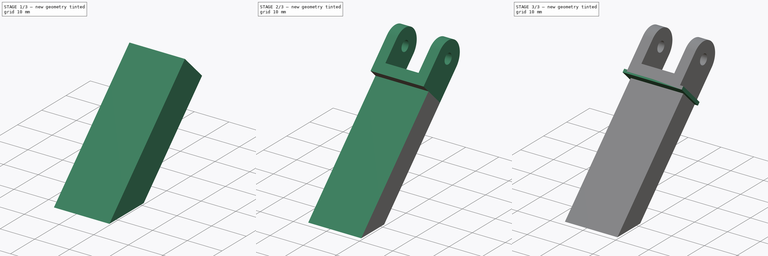
[diagram: build sequence overview — one tinted view per stage of 3, left to right]
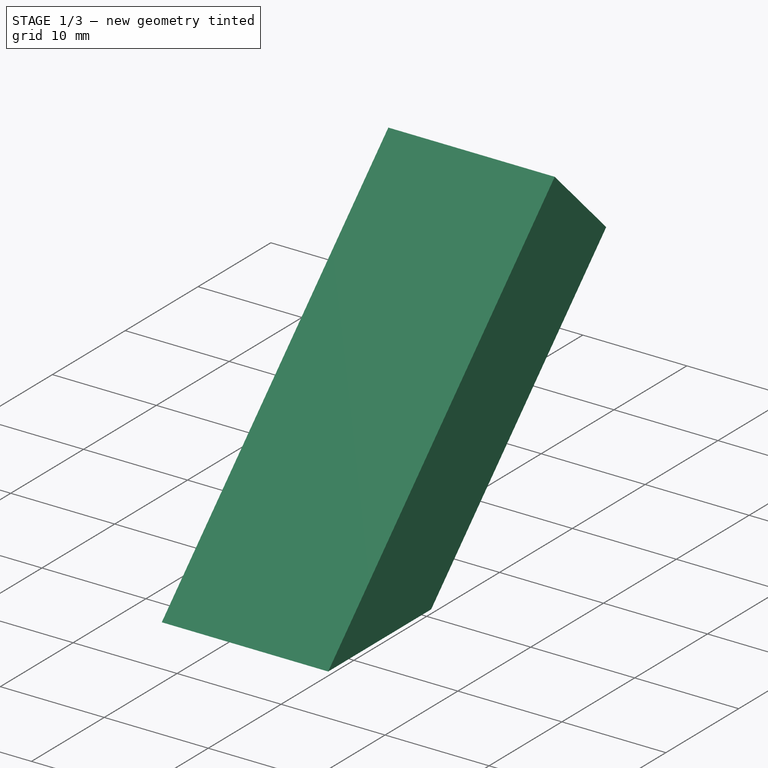
[diagram: stage 1 of 3 — iso view after this stage's code; geometry added in this stage tinted green]
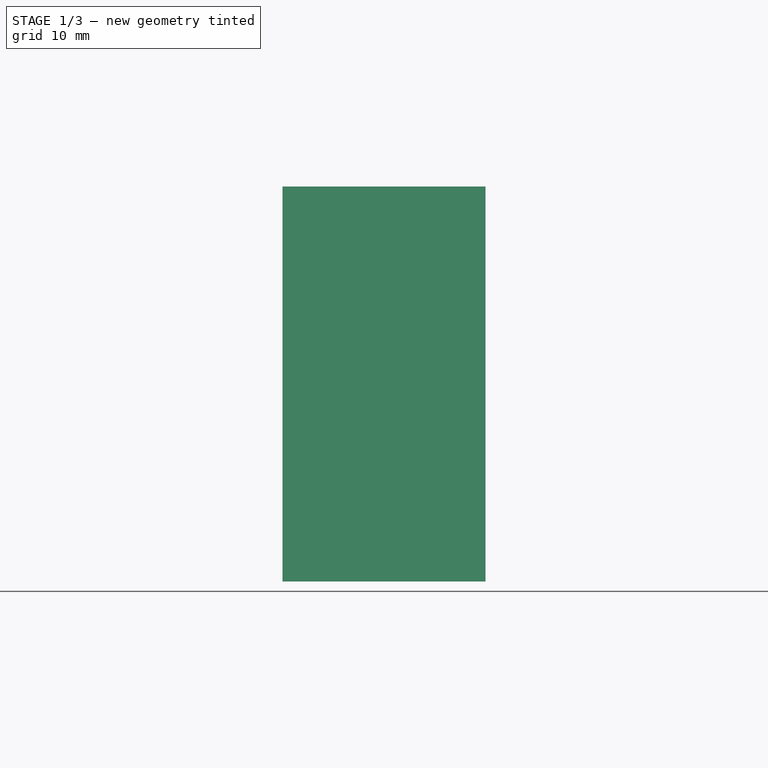
[diagram: stage 1 of 3 — front view after this stage's code; geometry added in this stage tinted green]
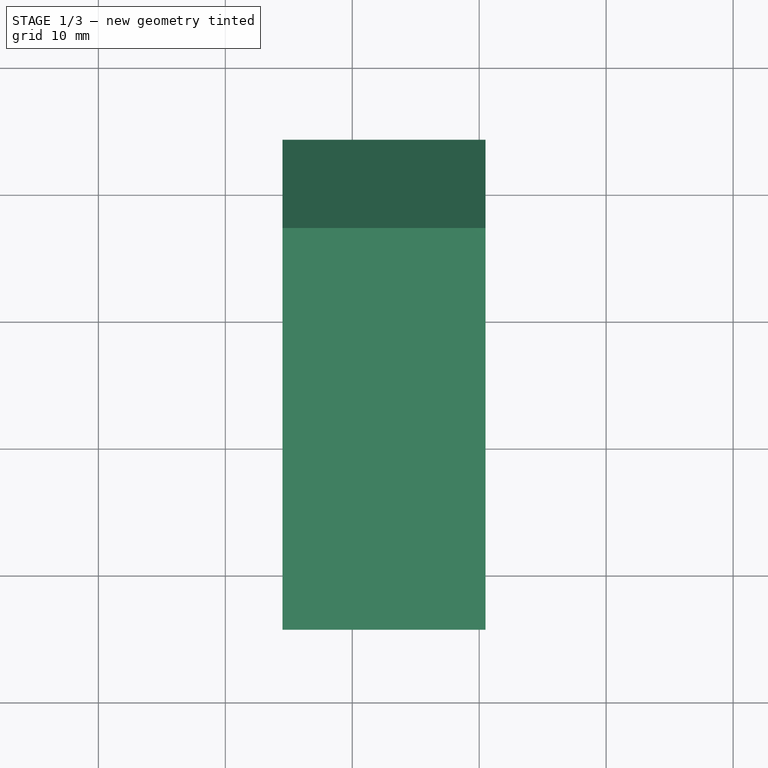
[diagram: stage 1 of 3 — top view after this stage's code; geometry added in this stage tinted green]
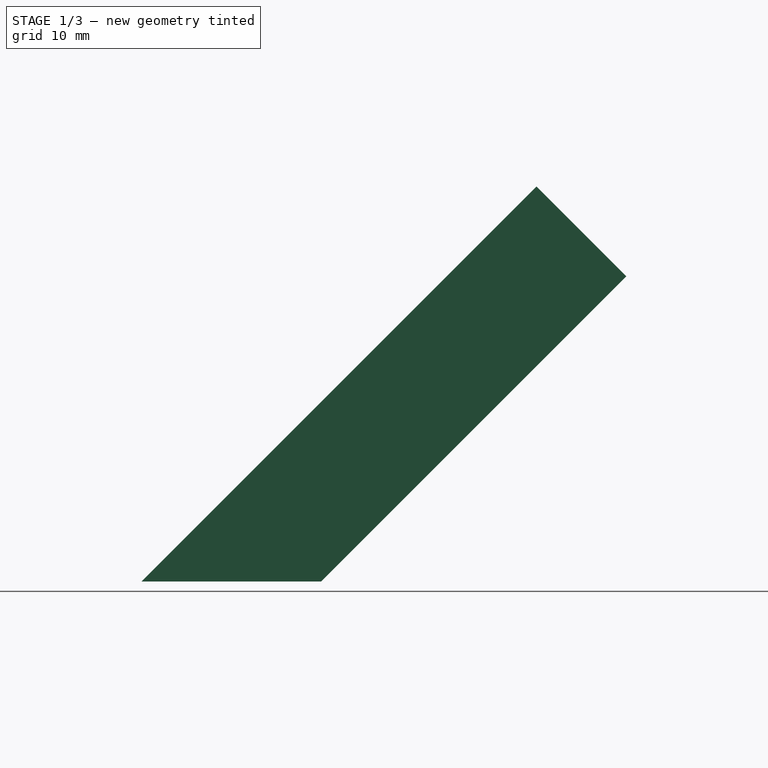
[diagram: stage 1 of 3 — right view after this stage's code; geometry added in this stage tinted green]
FCSTD DOCUMENT  (FreeCAD 1.0R39285 (Git))
Label: display-stand
License: All rights reserved
LicenseURL: http://en.wikipedia.org/wiki/All_rights_reserved
objects: Sketcher::SketchObject×5, PartDesign::Pad×3, PartDesign::Pocket×2, Part::Feature×1, PartDesign::FeatureBase×1, PartDesign::ShapeBinder×1, PartDesign::Plane×1, PartDesign::Fillet×1, PartDesign::Body×1, App::Part×1
note: 34 computed .brp shape members not serialized (recipe doc carries the construction recipe); baked Part::Feature solids carry a one-line shape summary decoded from their .brp

FEATURE [Sketcher::SketchObject] Sketch001
  ArcFitTolerance = 1e-06
  FullyConstrained = true
  MakeInternals = false
  MapMode = 5
  Placement = pos=(0,28.9914,28.9914) rot=(-1,0,0;0.785398rad)
  sketch-geometry (5):
    g0: LineSegment StartX=34.5 StartY=7.00003 StartZ=0 EndX=34.5 EndY=-2.99997 EndZ=0
    g1: LineSegment StartX=34.5 StartY=-2.99997 StartZ=0 EndX=50.5 EndY=-2.99997 EndZ=0
    g2: LineSegment StartX=50.5 StartY=-2.99997 StartZ=0 EndX=50.5 EndY=7.00003 EndZ=0
    g3: LineSegment StartX=50.5 StartY=7.00003 StartZ=0 EndX=34.5 EndY=7.00003 EndZ=0
    g4: GeomPoint X=42.5 Y=-2.99997 Z=0
  constraints (12):
    c: Coincident(g0,g1)
    c: Coincident(g1,g2)
    c: Coincident(g2,g3)
    c: Coincident(g3,g0)
    c: Vertical(g0)
    c: Vertical(g2)
    c: Horizontal(g1)
    c: Horizontal(g3)
    c: DistanceX(g3,g3) = 16
    c: Symmetric(g1,g1,g4)
    c: Symmetric(g-3,g-3,g4)
    c: DistanceY(g2,g2) = 10
FEATURE [PartDesign::ShapeBinder] ShapeBinder
  Support = -> [LCD1602_Mount001_solid]
  TraceSupport = false
FEATURE [PartDesign::Plane] DatumPlane
  AttachmentSupport = -> [ShapeBinder]
  Length = 87.232
  MapMode = 45
  Placement = pos=(42,19.3276,0) rot=(0,0,1;1.57227rad)
  ResizeMode = 0
  Width = 127.624
FEATURE [PartDesign::Pad] Pad001
  Direction = (0,0.707107,0.707107)
  Length = 15
  Length2 = 10
  Placement = pos=(0,28.9914,28.9914) rot=(-1,0,0;0.785398rad)
  Profile = -> Sketch001
  ReferenceAxis = -> Sketch001 [N_Axis]
  Suppressed = false
  Type = 3
  UpToFace = -> DatumPlane
FEATURE [Sketcher::SketchObject] Sketch002
  ArcFitTolerance = 1e-06
  AttachmentSupport = -> [Pad001]
  FullyConstrained = true
  MakeInternals = false
  MapMode = 5
  Placement = pos=(34.5,28.9914,28.9914) rot=(0.357407,-0.862856,-0.357407;1.71777rad)
  sketch-geometry (2):
    g0: LineSegment [constr] StartX=-2.00003 StartY=15 StartZ=0 EndX=-2.00003 EndY=0 EndZ=0
    g1: Circle CenterX=-2.00003 CenterY=10 CenterZ=0 NormalX=0 NormalY=0 NormalZ=1 AngleXU=0 Radius=1.55
  constraints (5):
    c: Symmetric(g-3,g-4,g0)
    c: Symmetric(g-3,g-4,g0)
    c: Diameter(g1) = 3.1
    c: DistanceY(g1,g-4) = 5
    c: PointOnObject(g1,g0)
FEATURE [PartDesign::Pocket] Pocket
  BaseFeature = -> Pad001
  Direction = (1,0,0)
  Length = 5
  Length2 = 5
  Placement = pos=(0,28.9914,28.9914) rot=(-1,0,0;0.785398rad)
  Profile = -> Sketch002
  ReferenceAxis = -> Sketch002 [N_Axis]
  Suppressed = false
  Type = 1
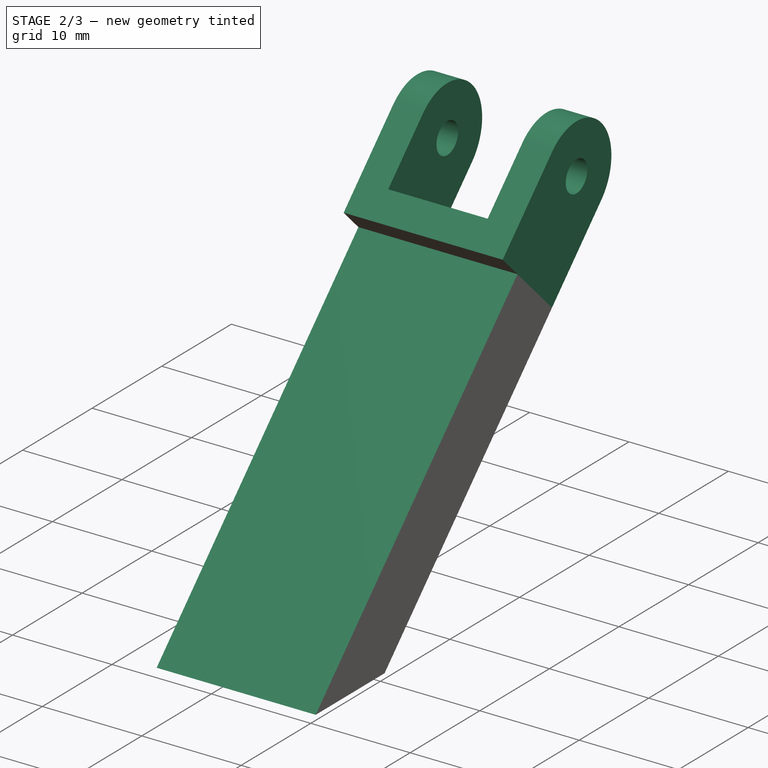
[diagram: stage 2 of 3 — iso view after this stage's code; geometry added in this stage tinted green]
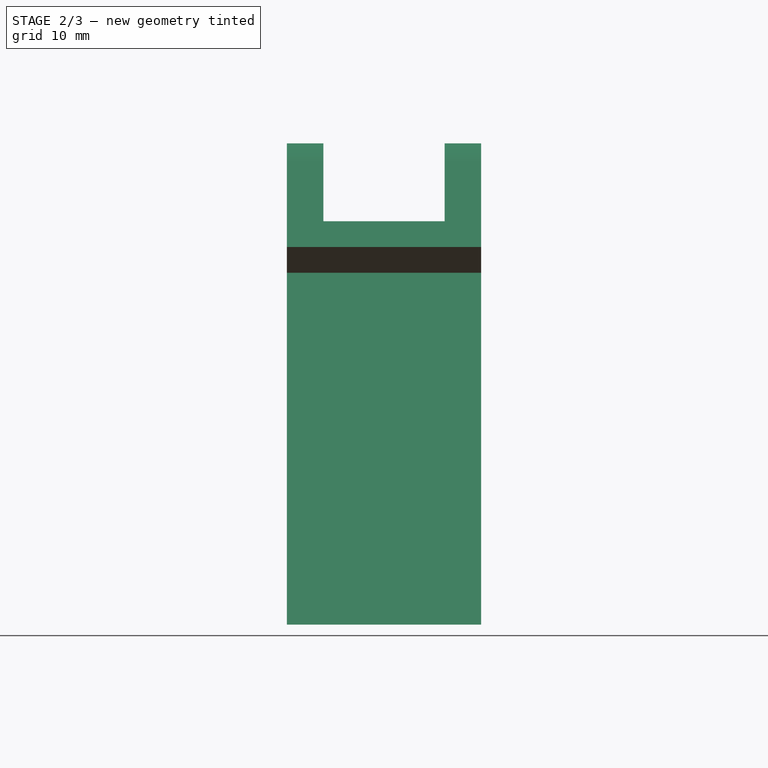
[diagram: stage 2 of 3 — front view after this stage's code; geometry added in this stage tinted green]
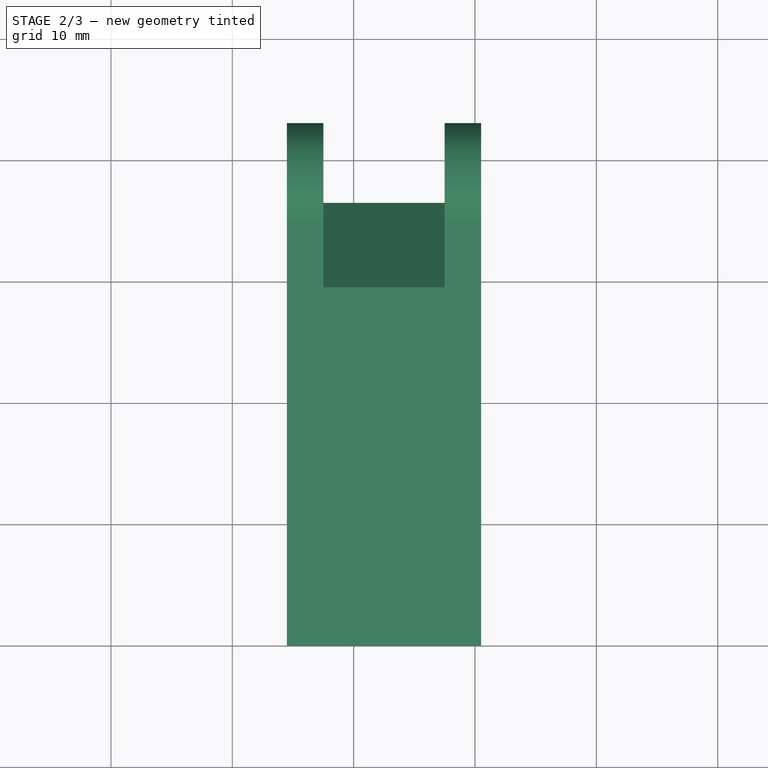
[diagram: stage 2 of 3 — top view after this stage's code; geometry added in this stage tinted green]
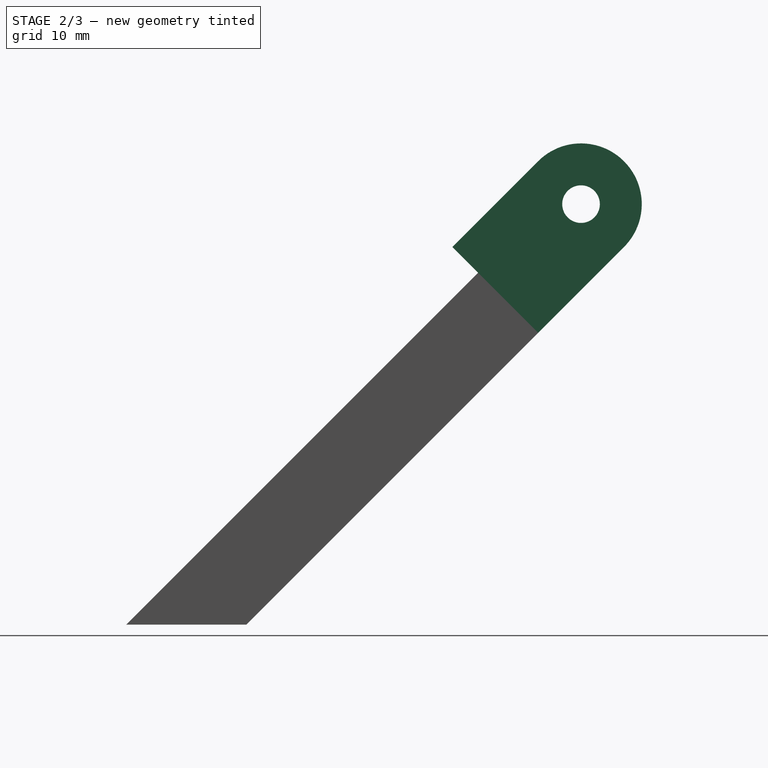
[diagram: stage 2 of 3 — right view after this stage's code; geometry added in this stage tinted green]
FEATURE [Sketcher::SketchObject] Sketch003
  ArcFitTolerance = 1e-06
  AttachmentSupport = -> [Pocket]
  ExternalGeometry = -> [Pocket]
  FullyConstrained = true
  MakeInternals = false
  MapMode = 5
  Placement = pos=(0,39.598,39.598) rot=(-1,0,0;0.785398rad)
  sketch-geometry (5):
    g0: LineSegment StartX=37.5 StartY=12 StartZ=0 EndX=37.5 EndY=-2.99997 EndZ=0
    g1: LineSegment StartX=37.5 StartY=-2.99997 StartZ=0 EndX=47.5 EndY=-2.99997 EndZ=0
    g2: LineSegment StartX=47.5 StartY=-2.99997 StartZ=0 EndX=47.5 EndY=12 EndZ=0
    g3: LineSegment StartX=47.5 StartY=12 StartZ=0 EndX=37.5 EndY=12 EndZ=0
    g4: GeomPoint X=42.5 Y=12 Z=0
  constraints (13):
    c: Coincident(g1,g2)
    c: Coincident(g2,g3)
    c: Coincident(g3,g0)
    c: Vertical(g0)
    c: Vertical(g2)
    c: Horizontal(g1)
    c: Horizontal(g3)
    c: Distance(g0,g2) = 10
    c: Symmetric(g3,g3,g4)
    c: Coincident(g0,g1)
    c: DistanceY(g2,g2) = 15
    c: PointOnObject(g0,g-4)
    c: DistanceX(g1,g-4) = 3
FEATURE [PartDesign::Pocket] Pocket001
  BaseFeature = -> Pocket
  Direction = (0,-0.707107,-0.707107)
  Length = 12
  Length2 = 5
  Placement = pos=(0,28.9914,28.9914) rot=(-1,0,0;0.785398rad)
  Profile = -> Sketch003
  ReferenceAxis = -> Sketch003 [N_Axis]
  Suppressed = false
  Type = 0
FEATURE [PartDesign::Fillet] Fillet
  Base = -> Pocket001 [Edge18,Edge16,Edge7,Edge11]
  BaseFeature = -> Pocket001
  Placement = pos=(0,28.9914,28.9914) rot=(-1,0,0;0.785398rad)
  Radius = 4.99
  SupportTransform = false
  Suppressed = false
  UseAllEdges = false
FEATURE [Sketcher::SketchObject] Sketch004
  ArcFitTolerance = 1e-06
  AttachmentSupport = -> [Fillet]
  ExternalGeometry = -> [Sketch001]
  FullyConstrained = true
  MakeInternals = false
  MapMode = 5
  Placement = pos=(0,28.9914,28.9914) rot=(1,0,0;2.35619rad)
  sketch-geometry (4):
    g0: LineSegment StartX=34.5 StartY=-2.91327e-05 StartZ=0 EndX=34.5 EndY=-7.00003 EndZ=0
    g1: LineSegment StartX=34.5 StartY=-7.00003 StartZ=0 EndX=50.5 EndY=-7.00003 EndZ=0
    g2: LineSegment StartX=50.5 StartY=-7.00003 StartZ=0 EndX=50.5 EndY=-2.91327e-05 EndZ=0
    g3: LineSegment StartX=50.5 StartY=-2.91327e-05 StartZ=0 EndX=34.5 EndY=-2.91327e-05 EndZ=0
  constraints (11):
    c: Coincident(g0,g1)
    c: Coincident(g1,g2)
    c: Coincident(g2,g3)
    c: Coincident(g3,g0)
    c: Vertical(g0)
    c: Vertical(g2)
    c: Horizontal(g1)
    c: Horizontal(g3)
    c: PointOnObject(g0,g-3)
    c: Coincident(g1,g-5)
    c: DistanceY(g0,g0) = 7
FEATURE [PartDesign::Pad] Pad002
  BaseFeature = -> Fillet
  Direction = (1,1,1)
  Length = 10
  Length2 = 10
  Placement = pos=(0,28.9914,28.9914) rot=(-1,0,0;0.785398rad)
  Profile = -> Sketch004
  ReferenceAxis = -> Sketch004 [N_Axis]
  Suppressed = false
  Type = 3
  UpToFace = -> DatumPlane
FEATURE [PartDesign::Body] Body
  AllowCompound = false
  Group = -> [ShapeBinder,Sketch001,Pad001,Sketch002,Pocket,Sketch003,Pocket001,Fillet,DatumPlane,Sketch004,Pad002]
  Origin = -> Origin001
  Tip = -> Pad002
FEATURE [App::Part] Part
  Group = -> [Pad,Body,Sketch,BaseFeature]
  Origin = -> Origin
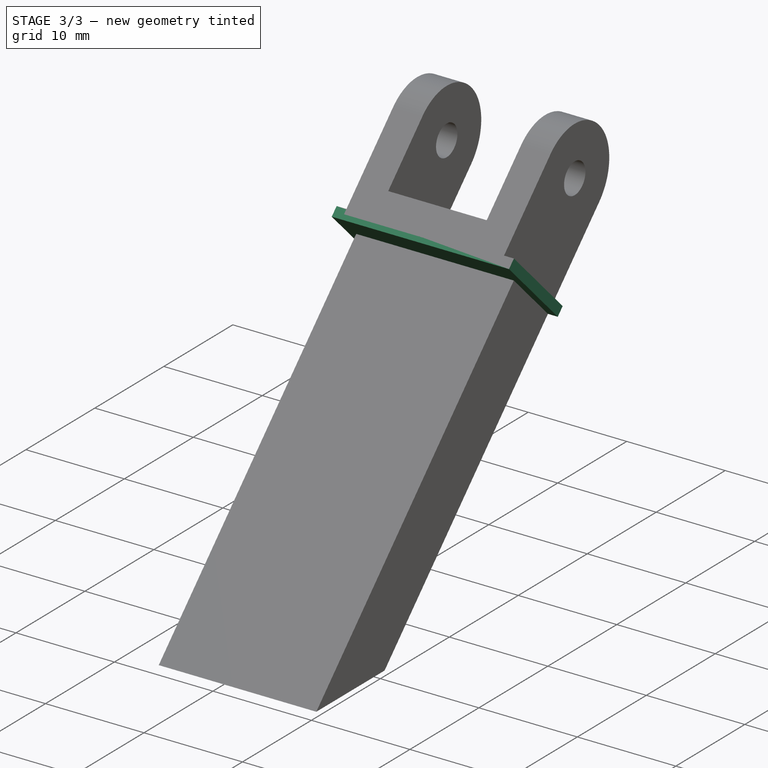
[diagram: stage 3 of 3 — iso view after this stage's code; geometry added in this stage tinted green]
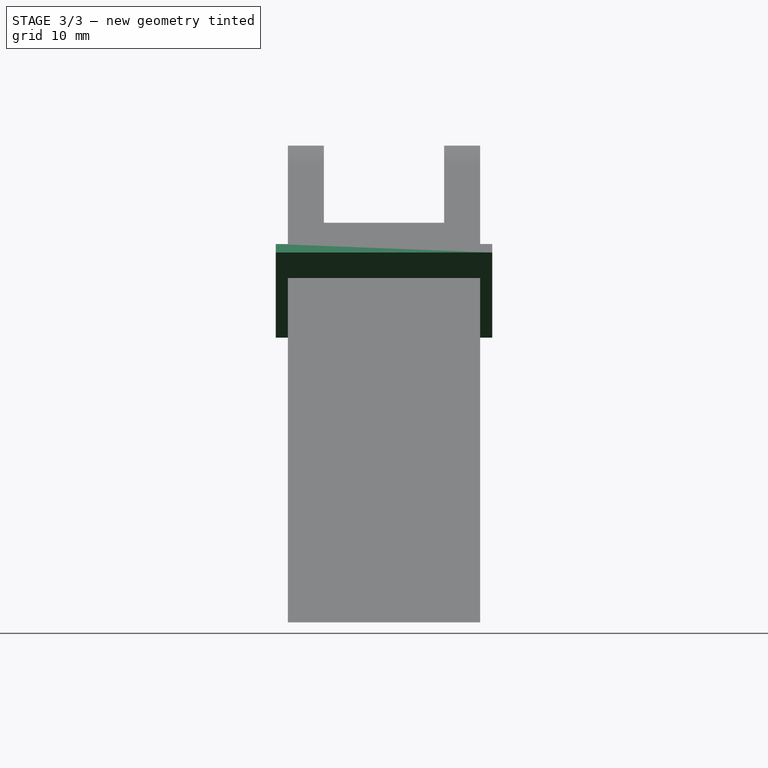
[diagram: stage 3 of 3 — front view after this stage's code; geometry added in this stage tinted green]
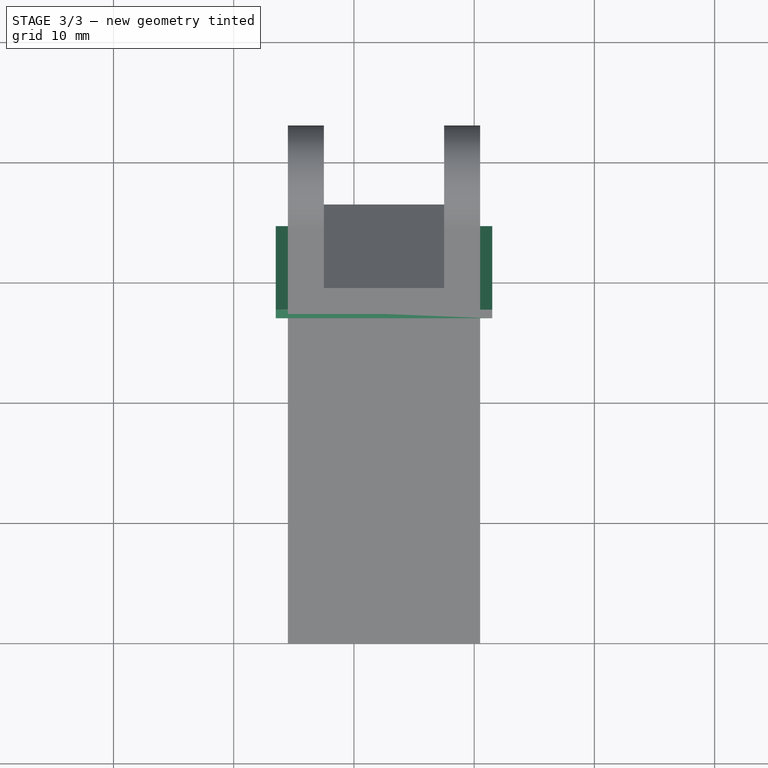
[diagram: stage 3 of 3 — top view after this stage's code; geometry added in this stage tinted green]
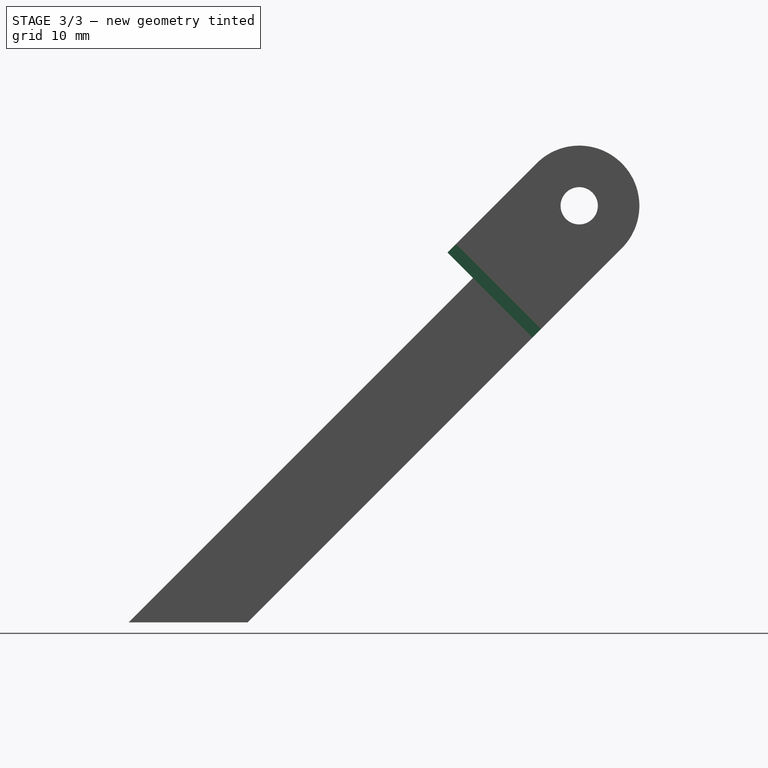
[diagram: stage 3 of 3 — right view after this stage's code; geometry added in this stage tinted green]
FEATURE [Part::Feature] LCD1602_Mount001_solid  label="LCD1602_Mount001 (Solid)"
  shape: bbox 85 x 37.48 x 37.48 mm, 3272 faces (baked)
FEATURE [PartDesign::FeatureBase] BaseFeature
  BaseFeature = -> LCD1602_Mount001_solid
  Suppressed = false
FEATURE [Sketcher::SketchObject] Sketch
  ArcFitTolerance = 1e-06
  AttachmentSupport = -> [BaseFeature]
  ExternalGeometry = -> [BaseFeature]
  FullyConstrained = true
  MakeInternals = false
  MapMode = 5
  Placement = pos=(0,28.9914,28.9914) rot=(-1,0,0;0.785398rad)
  sketch-geometry (5):
    g0: LineSegment StartX=33.5 StartY=7.00003 StartZ=0 EndX=33.5 EndY=-2.99997 EndZ=0
    g1: LineSegment StartX=33.5 StartY=-2.99997 StartZ=0 EndX=51.5 EndY=-2.99997 EndZ=0
    g2: LineSegment StartX=51.5 StartY=-2.99997 StartZ=0 EndX=51.5 EndY=7.00003 EndZ=0
    g3: LineSegment StartX=51.5 StartY=7.00003 StartZ=0 EndX=33.5 EndY=7.00003 EndZ=0
    g4: GeomPoint X=42.5 Y=-2.99997 Z=0
  constraints (12):
    c: Coincident(g0,g1)
    c: Coincident(g1,g2)
    c: Coincident(g2,g3)
    c: Coincident(g3,g0)
    c: Vertical(g0)
    c: Vertical(g2)
    c: Horizontal(g1)
    c: Horizontal(g3)
    c: DistanceX(g3,g3) = 18
    c: Symmetric(g1,g1,g4)
    c: Symmetric(g-3,g-3,g4)
    c: DistanceY(g2,g2) = 10
FEATURE [PartDesign::Pad] Pad
  Direction = (0,0.707107,0.707107)
  Length = 1
  Length2 = 10
  Midplane = true
  Profile = -> Sketch
  ReferenceAxis = -> Sketch [N_Axis]
  Suppressed = false
  Type = 0
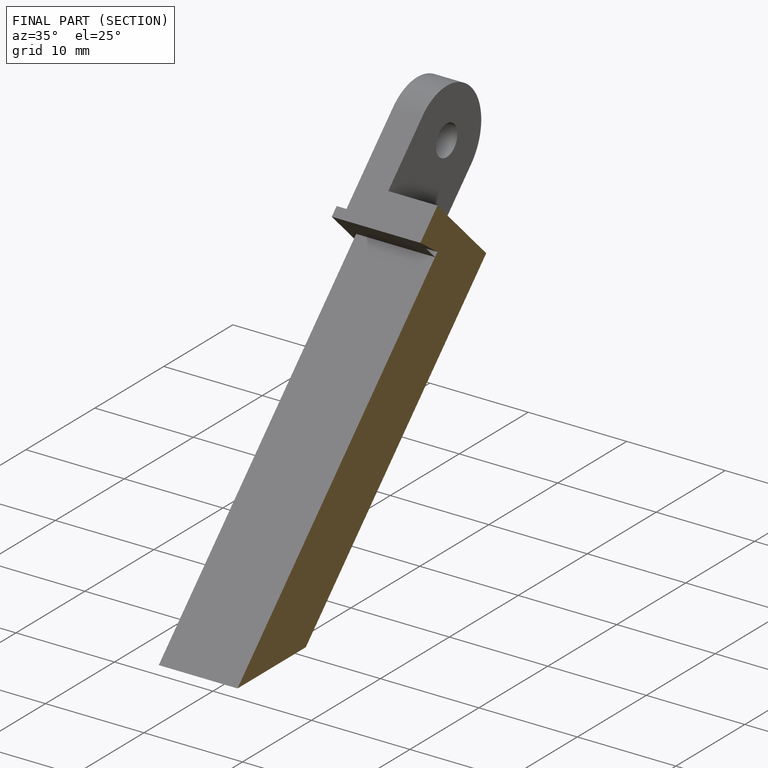
[diagram: finished part — half-section view (interior)]
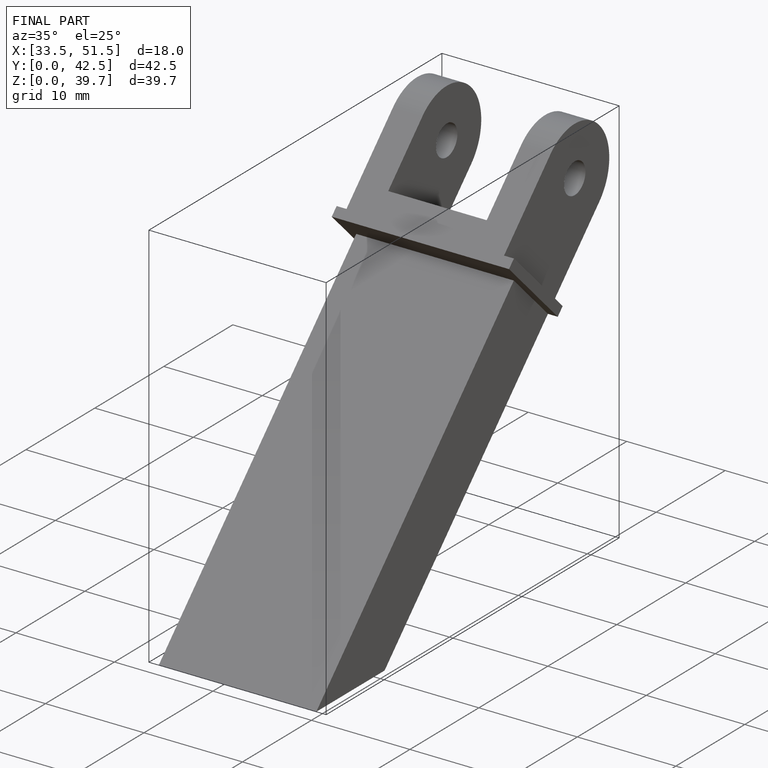
[diagram: finished part — iso view with bounding-box wireframe]
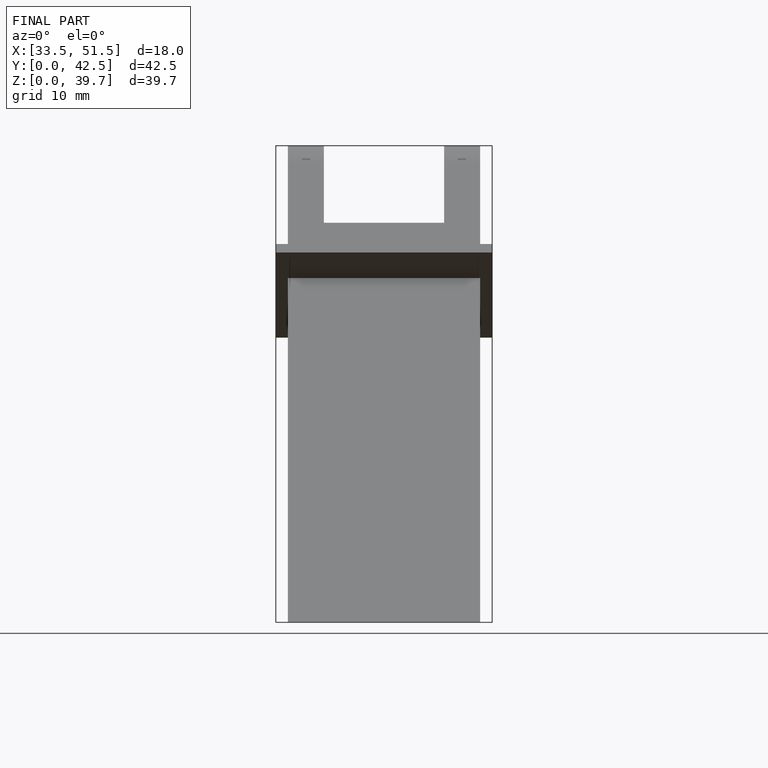
[diagram: finished part — front view with bounding-box wireframe]
